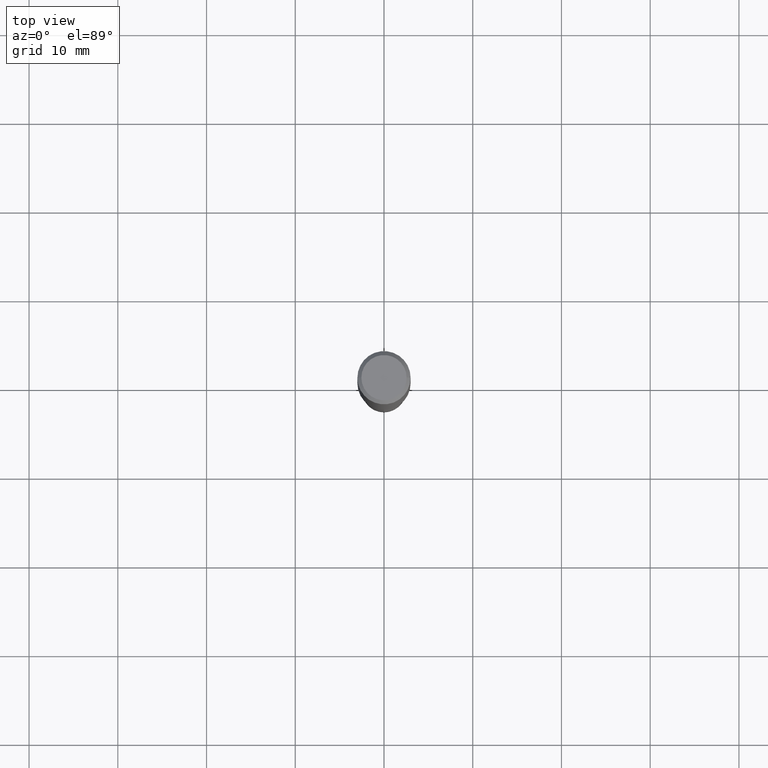
[diagram: clean part render]
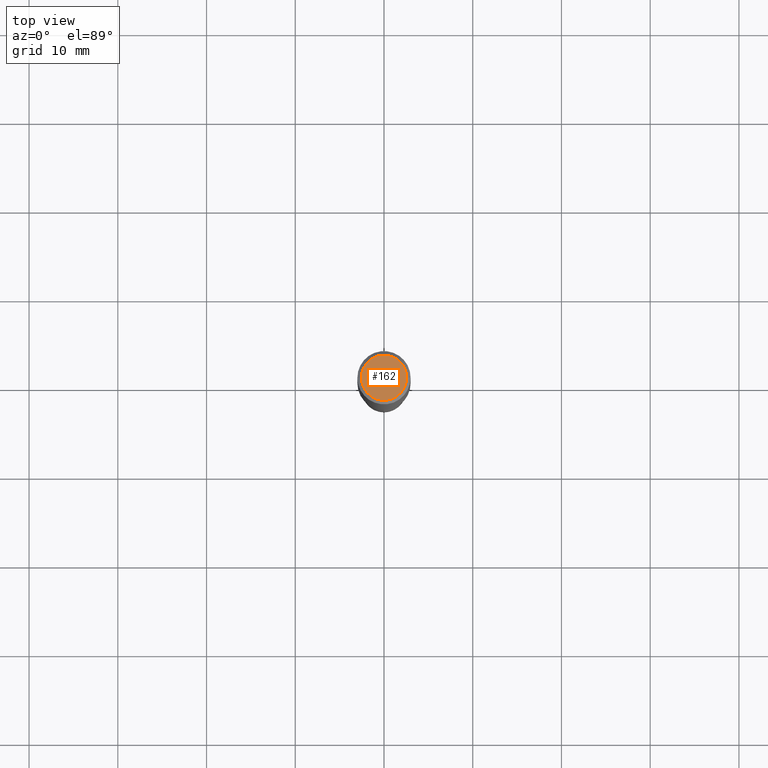
[diagram: same view with one face highlighted and labeled with its STEP entity id]
A machine part, top view. The second image highlights one B-rep face of the part: STEP entity #162.
In plain terms, the highlighted planar face has unit normal (0, -0, -1).
Its self-contained STEP definition (entity closure, byte-faithful):
#74 = DIRECTION ( 'NONE',  ( -1.000000000000000000, 6.982962677686265922E-15, -4.876176775795935793E-29 ) ) ;
#76 = CIRCLE ( 'NONE', #466, 0.1003850000000000020 ) ;
#84 = VERTEX_POINT ( 'NONE', #193 ) ;
#152 = CARTESIAN_POINT ( 'NONE',  ( 3.006365662761078129E-46, -4.292293396963677838E-32, -1.229361689324070654E-17 ) ) ;
#162 = ADVANCED_FACE ( 'NONE', ( #427 ), #351, .F. ) ;
#180 = CIRCLE ( 'NONE', #458, 0.1003850000000000020 ) ;
#193 = CARTESIAN_POINT ( 'NONE',  ( 0.1003850000000000020, -7.803837484803599345E-16, -1.229361689323552810E-17 ) ) ;
#198 = ORIENTED_EDGE ( 'NONE', *, *, #435, .T. ) ;
#201 = CARTESIAN_POINT ( 'NONE',  ( 3.006365662761078129E-46, -4.292293396963677838E-32, -1.229361689324070654E-17 ) ) ;
#215 = EDGE_CURVE ( 'NONE', #84, #282, #76, .T. ) ;
#227 = CARTESIAN_POINT ( 'NONE',  ( 1.503182831380539065E-46, -2.146146698481838919E-32, -6.146808446620353272E-18 ) ) ;
#231 = DIRECTION ( 'NONE',  ( -2.445468806185136597E-29, 3.491481338843145583E-15, 1.000000000000000000 ) ) ;
#233 = DIRECTION ( 'NONE',  ( 1.000000000000000000, -6.982962677686266711E-15, 4.875668750515086816E-29 ) ) ;
#234 = ORIENTED_EDGE ( 'NONE', *, *, #215, .T. ) ;
#244 = DIRECTION ( 'NONE',  ( 1.000000000000000000, -6.982962677686266711E-15, 4.875668750515086816E-29 ) ) ;
#262 = DIRECTION ( 'NONE',  ( 2.438088387897960049E-29, -3.491481338843145188E-15, -1.000000000000000000 ) ) ;
#282 = VERTEX_POINT ( 'NONE', #425 ) ;
#351 = PLANE ( 'NONE',  #465 ) ;
#425 = CARTESIAN_POINT ( 'NONE',  ( -0.1003850000000000020, 7.319105043583384717E-16, -1.229361689324571704E-17 ) ) ;
#427 = FACE_OUTER_BOUND ( 'NONE', #455, .T. ) ;
#435 = EDGE_CURVE ( 'NONE', #282, #84, #180, .T. ) ;
#440 = DIRECTION ( 'NONE',  ( -2.445468806185136597E-29, 3.491481338843145583E-15, 1.000000000000000000 ) ) ;
#455 = EDGE_LOOP ( 'NONE', ( #198, #234 ) ) ;
#458 = AXIS2_PLACEMENT_3D ( 'NONE', #201, #440, #244 ) ;
#465 = AXIS2_PLACEMENT_3D ( 'NONE', #227, #262, #74 ) ;
#466 = AXIS2_PLACEMENT_3D ( 'NONE', #152, #231, #233 ) ;